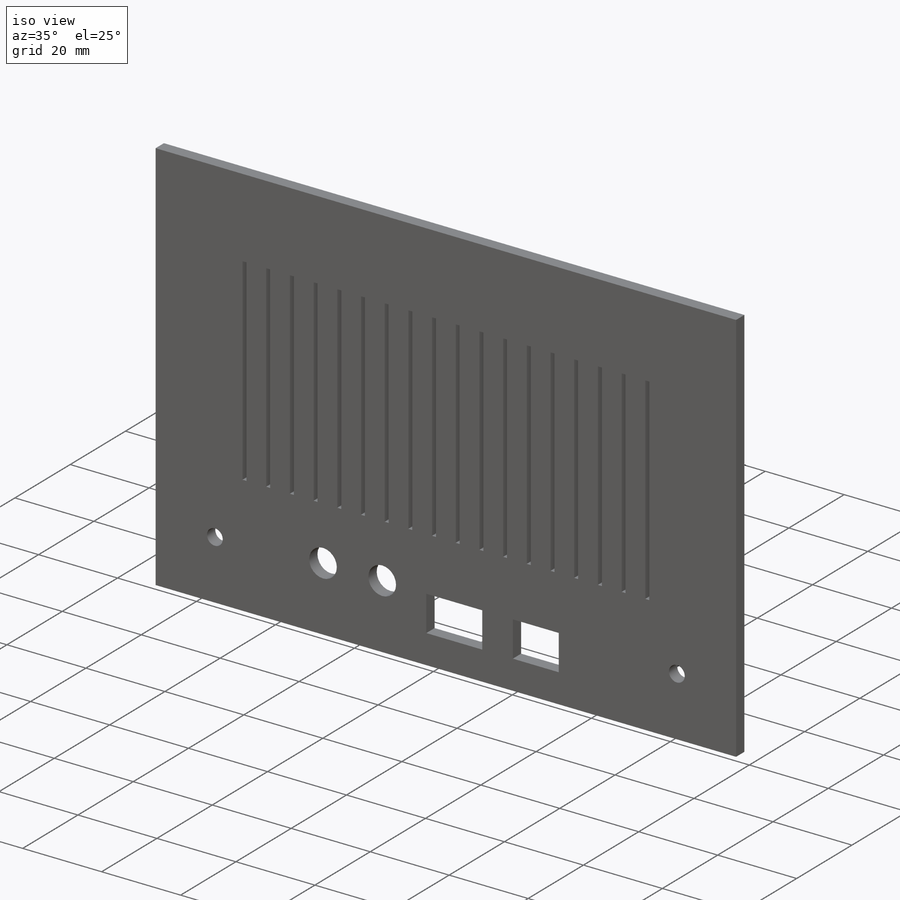
[diagram: iso view]
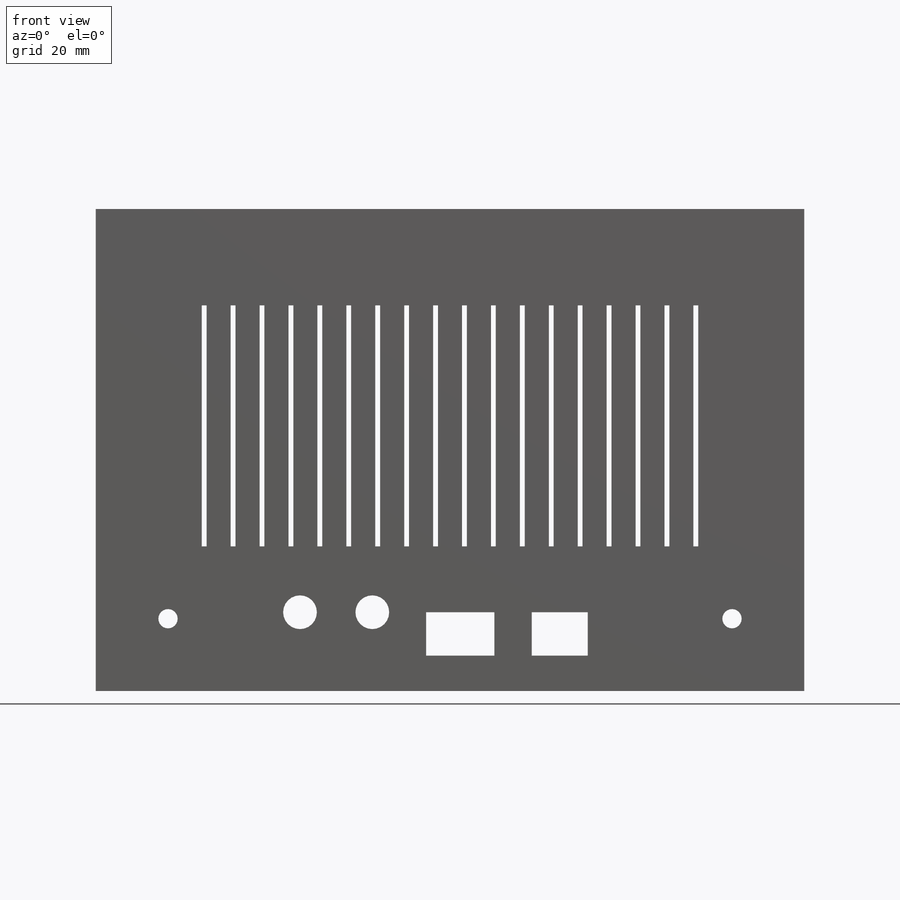
[diagram: front view]
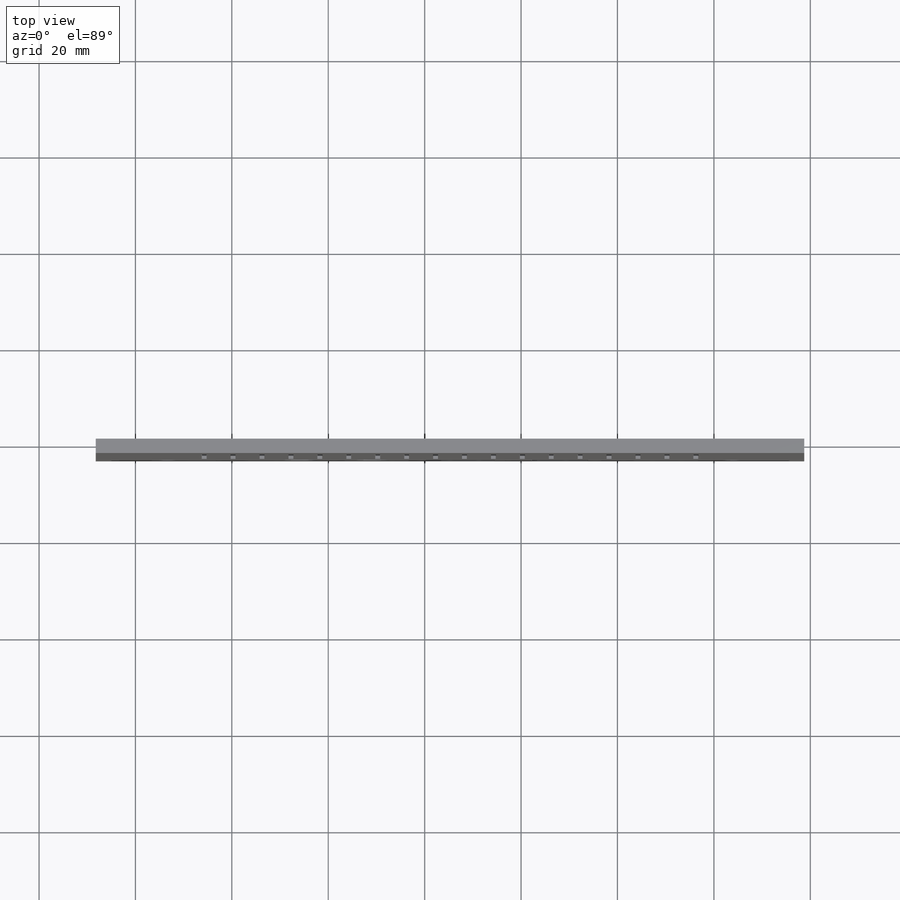
[diagram: top view]
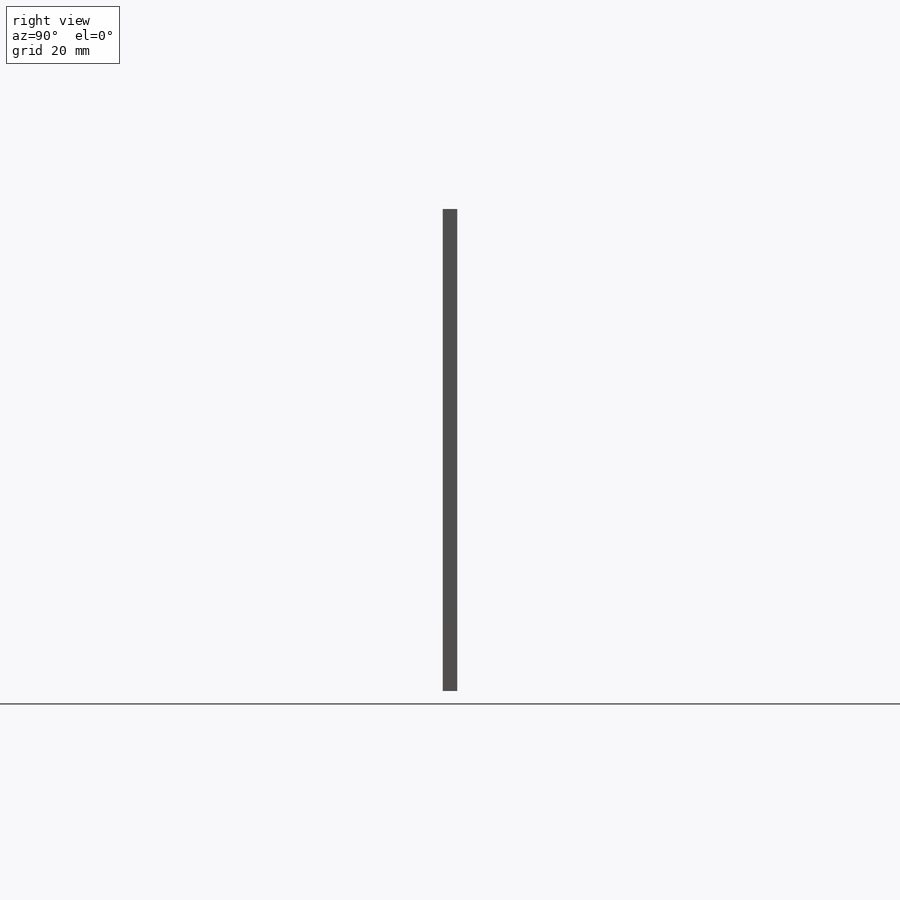
[diagram: right view]
SOLIDWORKS PART (.sldprt)
format: sldprt  version: not decoded by parser v0  size: 495,104 bytes
history: native  units: mm
features: sketch x8, cut_extrude x7, material x1, extrude x1 (+11 scaffold rows collapsed)
feature tree (28):
  scaffold x11  (default folders/planes/origin — collapsed)
  material  "Material <not specified>"
  sketch  "Sketch1"  dims[D1=146.0mm D2=100.0mm]
  extrude  "Boss-Extrude1"  Depth=3mm
  sketch  "Sketch2"  dims[c1.D1=1.0mm c1.D2=45.0mm c1.D3=45.0mm c1.D4=45.0mm c1.D5=45.0mm c1.D6=45.0mm c1.D7=5.0mm c1.D8=5.0mm c1.D9=~31.663658mm c1.D10=50.0mm c2.D9=5.0mm c2.D10=5.0mm c2.D11=0.0mm c2.D12=0.0mm c2.D13=0.0mm c2.D14=0.0mm c2.D15=45.0mm c2.D16=5.0mm c2.D17=0.0mm c2.D18=22.0mm c2.D19=30.0mm c2.D20=1.0mm c2.D21=1.0mm c2.D22=1.0mm c2.D23=1.0mm c2.D24=1.0mm c2.D25=1.0mm c2.D26=45.0mm c2.D27=1.0mm c2.D28=45.0mm c2.D29=1.0mm c2.D30=45.0mm c2.D31=5.0mm c2.D32=5.0mm c2.D33=5.0mm c2.D34=0.0mm c2.D35=0.0mm c2.D36=0.0mm c2.D37=1.0mm c2.D38=45.0mm c2.D39=45.0mm c2.D40=45.0mm c2.D41=45.0mm c2.D42=45.0mm c2.D43=5.0mm c2.D44=5.0mm c2.D45=0.0mm c2.D46=0.0mm c2.D47=0.0mm c2.D48=0.0mm c2.D49=45.0mm c2.D50=5.0mm c2.D51=0.0mm c2.D52=1.0mm c2.D53=1.0mm c2.D54=1.0mm c2.D55=1.0mm c2.D56=1.0mm c2.D57=1.0mm c2.D58=45.0mm c2.D59=45.0mm c2.D60=5.0mm c2.D61=0.0mm c2.D62=0.0mm c2.D63=0.0mm c2.D64=0.0mm c2.D65=5.0mm c2.D66=5.0mm c2.D67=5.0mm c2.D68=5.0mm c2.D69=5.0mm c2.D70=1.0mm c2.D71=1.0mm c2.D72=21.0mm]
  cut_extrude  "Cut-Extrude1"  [1 undecoded]
  sketch  "Sketch3"  dims[D1=4.0mm D2=4.0mm]
  cut_extrude  "Cut-Extrude2"  [1 undecoded]
  sketch  "Sketch4"  dims[D1=2.0mm D2=2.0mm D3=2.0mm D4=2.0mm]
  cut_extrude  "Cut-Extrude3"  [1 undecoded]
  sketch  "Sketch5"  dims[D1=2.0mm D2=2.0mm D3=2.0mm D4=2.0mm]
  cut_extrude  "Cut-Extrude4"  [1 undecoded]
  sketch  "Sketch6"  dims[D2=7.0mm D1=6.0mm D3=0.0mm D4=0.0mm D5=15.0mm]
  cut_extrude  "Cut-Extrude5"  [1 undecoded]
  sketch  "Sketch8"  dims[D1=4.0mm]
  cut_extrude  "Cut-Extrude6"  [1 undecoded]
  sketch  "Sketch9"  dims[D1=4.0mm D2=4.0mm]
  cut_extrude  "Cut-Extrude7"  [1 undecoded]
decode coverage: 9 of 16 modeling features carry decoded parameters
note: ~ marks probable driven/reference dimensions
note: 7 parameter values undecoded
summary: no parameter record found for 7 features
note: suppression state not decoded; provenance and decode notes live in map.json
